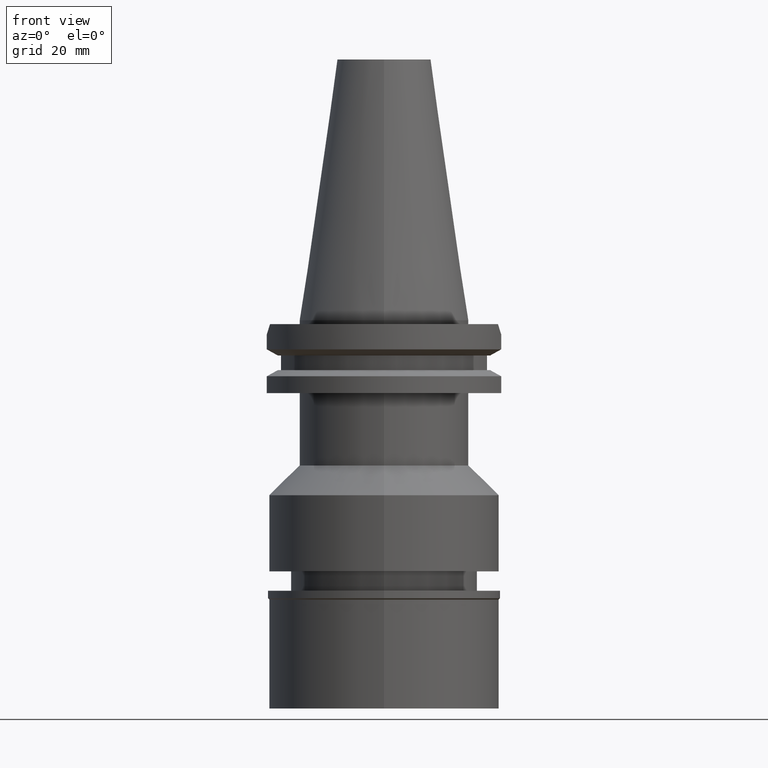
[diagram: clean part render]
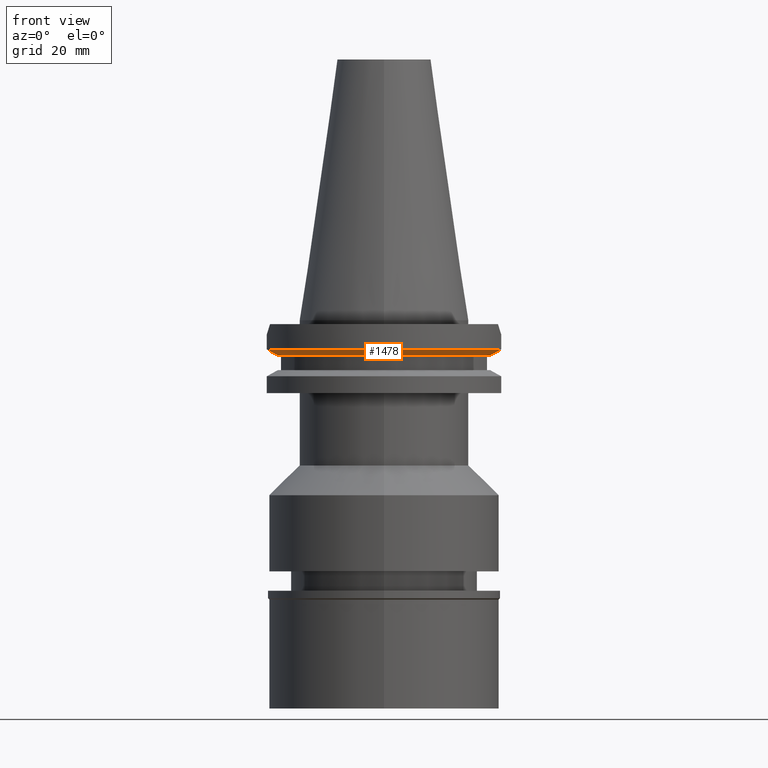
[diagram: same view with one face highlighted and labeled with its STEP entity id]
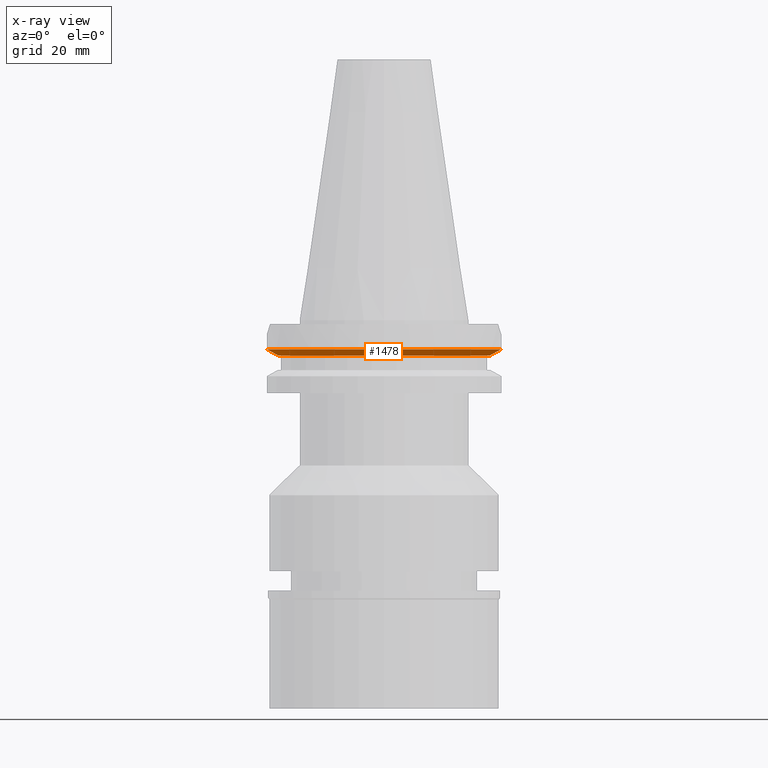
[diagram: x-ray of the same camera — body ghosted, the highlighted face saturated]
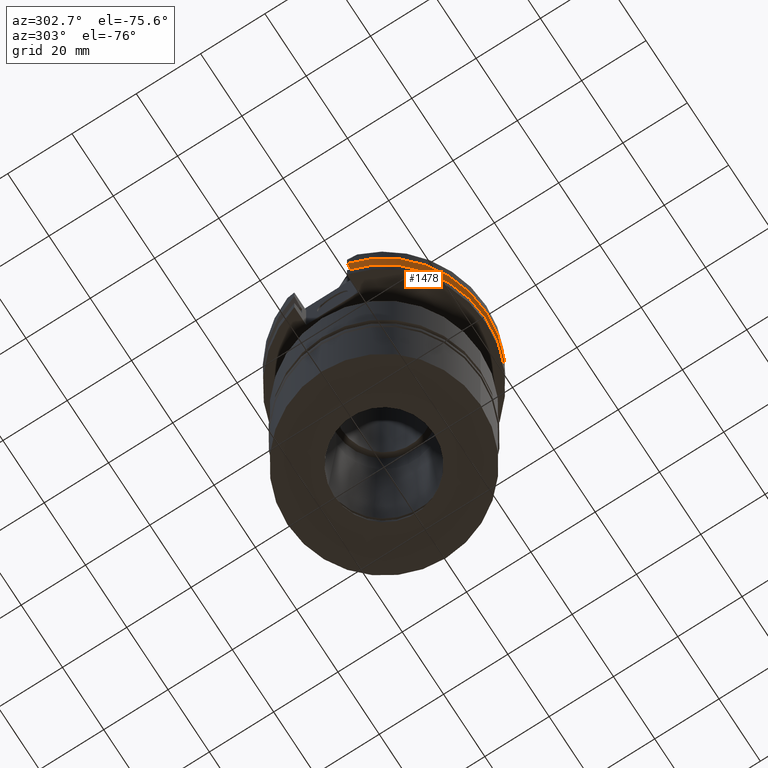
[diagram: same view with one face highlighted and labeled with its STEP entity id]
A machine part, front view. The second image highlights one B-rep face of the part: STEP entity #1478.
The next image is the same camera in x-ray: the body ghosted, the highlighted face saturated — about 0% of this face is hidden behind the body in this view.
A second angle (auxiliary view) of the same face is appended — the face is thin or edge-on in the first view.
In plain terms, the highlighted conical surface has half-angle 60 deg.
Its self-contained STEP definition (entity closure, byte-faithful):
#1 = CONICAL_SURFACE ( 'NONE', #2680, 30.35901877526999826, 1.047197551196400456 ) ;
#131 = CARTESIAN_POINT ( 'NONE',  ( 27.78616453894999694, -8.190000190890000198, -9.207500000000999663 ) ) ;
#148 = CARTESIAN_POINT ( 'NONE',  ( 30.67550146397999811, -8.190000606435999586, -7.601327811462999406 ) ) ;
#193 = DIRECTION ( 'NONE',  ( 0.0000000000000000000, 0.0000000000000000000, 1.000000000000000000 ) ) ;
#263 = CARTESIAN_POINT ( 'NONE',  ( 30.67550146397999811, -8.190000606435999586, -7.601327811462999406 ) ) ;
#297 = EDGE_CURVE ( 'NONE', #1392, #1625, #2033, .T. ) ;
#357 = EDGE_LOOP ( 'NONE', ( #2169, #1943, #999, #2345 ) ) ;
#364 = DIRECTION ( 'NONE',  ( 0.0000000000000000000, 0.0000000000000000000, 1.000000000000000000 ) ) ;
#433 = CIRCLE ( 'NONE', #2470, 31.74999999999998579 ) ;
#753 = CARTESIAN_POINT ( 'NONE',  ( -29.66936067408444089, -8.189999748599277041, -8.162570072265506127 ) ) ;
#854 = CARTESIAN_POINT ( 'NONE',  ( 0.0000000000000000000, 1.121722380078999823E-14, -8.404416615464000984 ) ) ;
#933 = CARTESIAN_POINT ( 'NONE',  ( 27.78616453894999694, -8.190000190890000198, -9.207500000000999663 ) ) ;
#999 = ORIENTED_EDGE ( 'NONE', *, *, #2232, .T. ) ;
#1021 = CARTESIAN_POINT ( 'NONE',  ( -30.67550165945999652, -8.189999874253000911, -7.601334354651999803 ) ) ;
#1095 = FACE_OUTER_BOUND ( 'NONE', #357, .T. ) ;
#1185 = AXIS2_PLACEMENT_3D ( 'NONE', #2560, #364, #1329 ) ;
#1313 = VERTEX_POINT ( 'NONE', #2748 ) ;
#1329 = DIRECTION ( 'NONE',  ( -0.9592008904639479638, -0.2827253998726845241, 0.0000000000000000000 ) ) ;
#1392 = VERTEX_POINT ( 'NONE', #131 ) ;
#1478 = ADVANCED_FACE ( 'NONE', ( #1095 ), #1, .T. ) ;
#1552 = EDGE_CURVE ( 'NONE', #1313, #1392, #2775, .T. ) ;
#1625 = VERTEX_POINT ( 'NONE', #263 ) ;
#1906 = CARTESIAN_POINT ( 'NONE',  ( 29.66936146181038580, -8.190001212435680245, -8.162569411278662201 ) ) ;
#1927 = B_SPLINE_CURVE_WITH_KNOTS ( 'NONE', 3,
 ( #1959, #753, #2004, #2757 ),
 .UNSPECIFIED., .F., .F.,
 ( 4, 4 ),
 ( 0.0000000000000000000, 1.000000000000000000 ),
 .UNSPECIFIED. ) ;
#1943 = ORIENTED_EDGE ( 'NONE', *, *, #2725, .F. ) ;
#1959 = CARTESIAN_POINT ( 'NONE',  ( -30.67550165945999652, -8.189999874253000911, -7.601334354651999803 ) ) ;
#1968 = DIRECTION ( 'NONE',  ( -0.9661575315241073270, -0.2579527559055020958, 0.0000000000000000000 ) ) ;
#2004 = CARTESIAN_POINT ( 'NONE',  ( -28.70626004135150566, -8.189998719036431396, -8.697957594013328020 ) ) ;
#2033 = B_SPLINE_CURVE_WITH_KNOTS ( 'NONE', 3,
 ( #933, #2604, #1906, #148 ),
 .UNSPECIFIED., .F., .F.,
 ( 4, 4 ),
 ( 0.0000000000000000000, 1.000000000000000000 ),
 .UNSPECIFIED. ) ;
#2169 = ORIENTED_EDGE ( 'NONE', *, *, #297, .T. ) ;
#2226 = VERTEX_POINT ( 'NONE', #1021 ) ;
#2232 = EDGE_CURVE ( 'NONE', #2226, #1313, #1927, .T. ) ;
#2345 = ORIENTED_EDGE ( 'NONE', *, *, #1552, .T. ) ;
#2388 = CARTESIAN_POINT ( 'NONE',  ( 0.0000000000000000000, 1.121722380078999823E-14, -7.601333230925999551 ) ) ;
#2470 = AXIS2_PLACEMENT_3D ( 'NONE', #2388, #193, #1968 ) ;
#2560 = CARTESIAN_POINT ( 'NONE',  ( 0.0000000000000000000, 1.121722380078999823E-14, -9.207500000002999840 ) ) ;
#2604 = CARTESIAN_POINT ( 'NONE',  ( 28.70625673486868479, -8.190000382213314722, -8.697959176109025137 ) ) ;
#2619 = DIRECTION ( 'NONE',  ( 0.0000000000000000000, 1.000000000000000000, 0.0000000000000000000 ) ) ;
#2680 = AXIS2_PLACEMENT_3D ( 'NONE', #854, #3085, #2619 ) ;
#2725 = EDGE_CURVE ( 'NONE', #2226, #1625, #433, .T. ) ;
#2748 = CARTESIAN_POINT ( 'NONE',  ( -27.78617704692999979, -8.189999360225000302, -9.207500000000999663 ) ) ;
#2757 = CARTESIAN_POINT ( 'NONE',  ( -27.78617704692999979, -8.189999360225000302, -9.207500000000999663 ) ) ;
#2775 = CIRCLE ( 'NONE', #1185, 28.96803755052999918 ) ;
#3085 = DIRECTION ( 'NONE',  ( 0.0000000000000000000, 0.0000000000000000000, 1.000000000000000000 ) ) ;